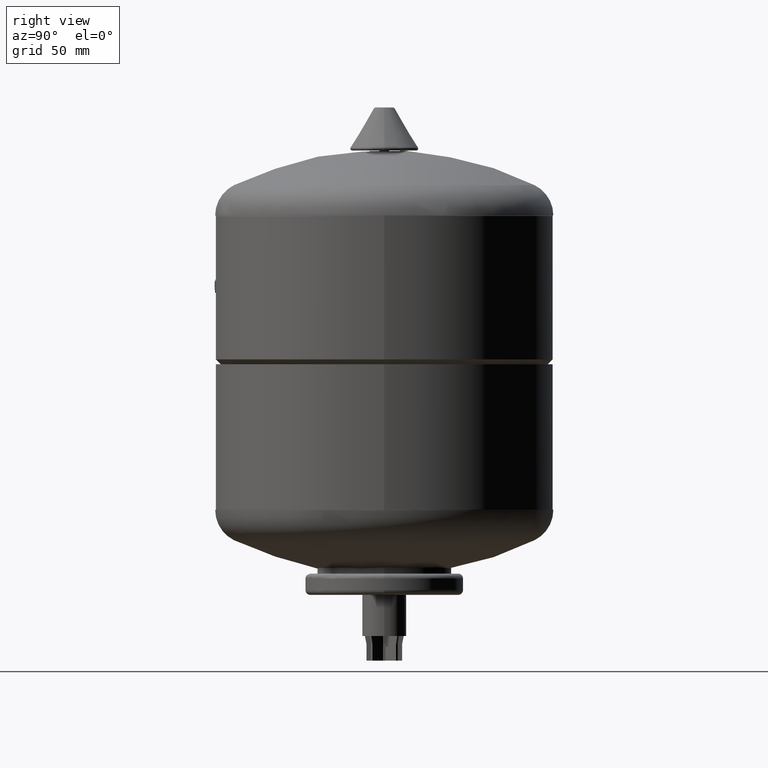
[diagram: clean part render]
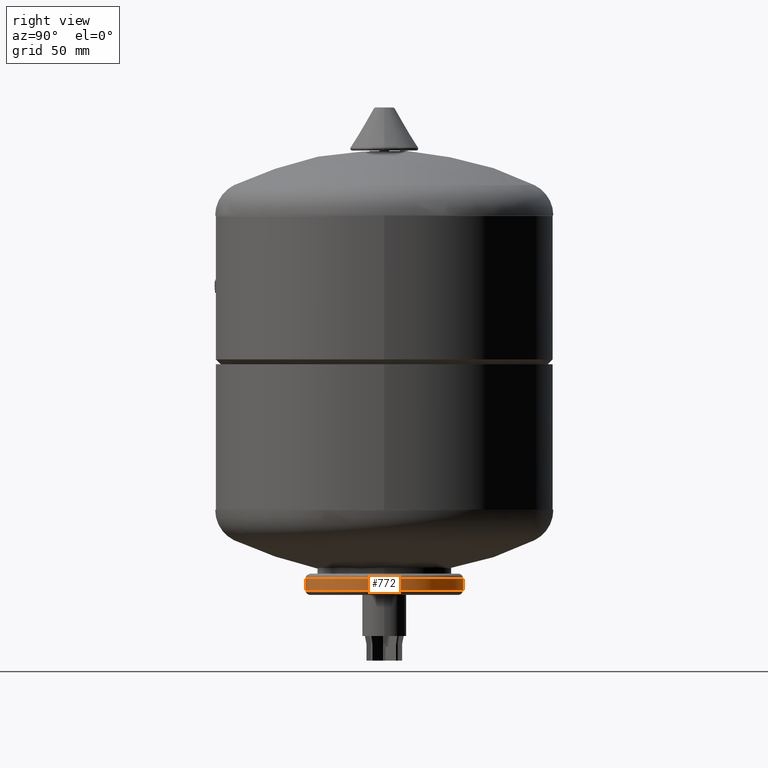
[diagram: same view with one face highlighted and labeled with its STEP entity id]
A machine part, right view. The second image highlights one B-rep face of the part: STEP entity #772.
In plain terms, the highlighted cylindrical surface (partial cylindrical patch) has radius 48 mm, axis along (0, -0, -1).
Its self-contained STEP definition (entity closure, byte-faithful):
#130=CARTESIAN_POINT('',(0.0,48.0,42.999999999999993));
#131=VERTEX_POINT('',#130);
#132=CARTESIAN_POINT('',(0.0,48.0,50.000000000000007));
#133=VERTEX_POINT('',#132);
#134=CARTESIAN_POINT('',(0.0,48.0,42.999999999999993));
#135=DIRECTION('',(0.0,0.0,1.0));
#136=VECTOR('',#135,7.000000000000014);
#137=LINE('',#134,#136);
#138=EDGE_CURVE('',#131,#133,#137,.T.);
#149=CARTESIAN_POINT('',(-5.878110E-015,-48.000000000000007,43.0));
#150=VERTEX_POINT('',#149);
#158=CARTESIAN_POINT('',(-5.878110E-015,-48.000000000000007,50.000000000000014));
#159=VERTEX_POINT('',#158);
#160=CARTESIAN_POINT('',(-5.878110E-015,-48.000000000000007,43.0));
#161=DIRECTION('',(0.0,0.0,1.0));
#162=VECTOR('',#161,7.000000000000014);
#163=LINE('',#160,#162);
#164=EDGE_CURVE('',#150,#159,#163,.T.);
#242=CARTESIAN_POINT('',(48.000000000000007,-5.878110E-015,50.000000000000007));
#243=VERTEX_POINT('',#242);
#244=CARTESIAN_POINT('',(0.0,0.0,50.000000000000007));
#245=DIRECTION('',(0.0,0.0,-1.0));
#246=DIRECTION('',(0.0,1.0,0.0));
#247=AXIS2_PLACEMENT_3D('',#244,#245,#246);
#248=CIRCLE('',#247,48.000000000000007);
#249=EDGE_CURVE('',#243,#159,#248,.T.);
#483=CARTESIAN_POINT('',(48.000000000000007,-5.878110E-015,43.0));
#484=VERTEX_POINT('',#483);
#492=CARTESIAN_POINT('',(0.0,0.0,43.0));
#493=DIRECTION('',(0.0,0.0,-1.0));
#494=DIRECTION('',(0.0,1.0,0.0));
#495=AXIS2_PLACEMENT_3D('',#492,#493,#494);
#496=CIRCLE('',#495,48.000000000000007);
#497=EDGE_CURVE('',#484,#150,#496,.T.);
#553=CARTESIAN_POINT('',(0.0,0.0,43.0));
#554=DIRECTION('',(0.0,0.0,-1.0));
#555=DIRECTION('',(0.0,1.0,0.0));
#556=AXIS2_PLACEMENT_3D('',#553,#554,#555);
#557=CIRCLE('',#556,48.000000000000007);
#558=EDGE_CURVE('',#131,#484,#557,.T.);
#720=CARTESIAN_POINT('',(0.0,0.0,50.000000000000007));
#721=DIRECTION('',(0.0,0.0,-1.0));
#722=DIRECTION('',(0.0,1.0,0.0));
#723=AXIS2_PLACEMENT_3D('',#720,#721,#722);
#724=CIRCLE('',#723,48.000000000000007);
#725=EDGE_CURVE('',#133,#243,#724,.T.);
#759=CARTESIAN_POINT('',(0.0,0.0,47.0));
#760=DIRECTION('',(0.0,-1.045403E-016,-1.0));
#761=DIRECTION('',(0.0,1.0,0.0));
#762=AXIS2_PLACEMENT_3D('',#759,#760,#761);
#763=CYLINDRICAL_SURFACE('',#762,48.000000000000007);
#764=ORIENTED_EDGE('',*,*,#138,.T.);
#765=ORIENTED_EDGE('',*,*,#725,.T.);
#766=ORIENTED_EDGE('',*,*,#249,.T.);
#767=ORIENTED_EDGE('',*,*,#164,.F.);
#768=ORIENTED_EDGE('',*,*,#497,.F.);
#769=ORIENTED_EDGE('',*,*,#558,.F.);
#770=EDGE_LOOP('',(#764,#765,#766,#767,#768,#769));
#771=FACE_OUTER_BOUND('',#770,.T.);
#772=ADVANCED_FACE('',(#771),#763,.T.);